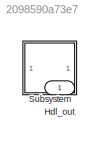
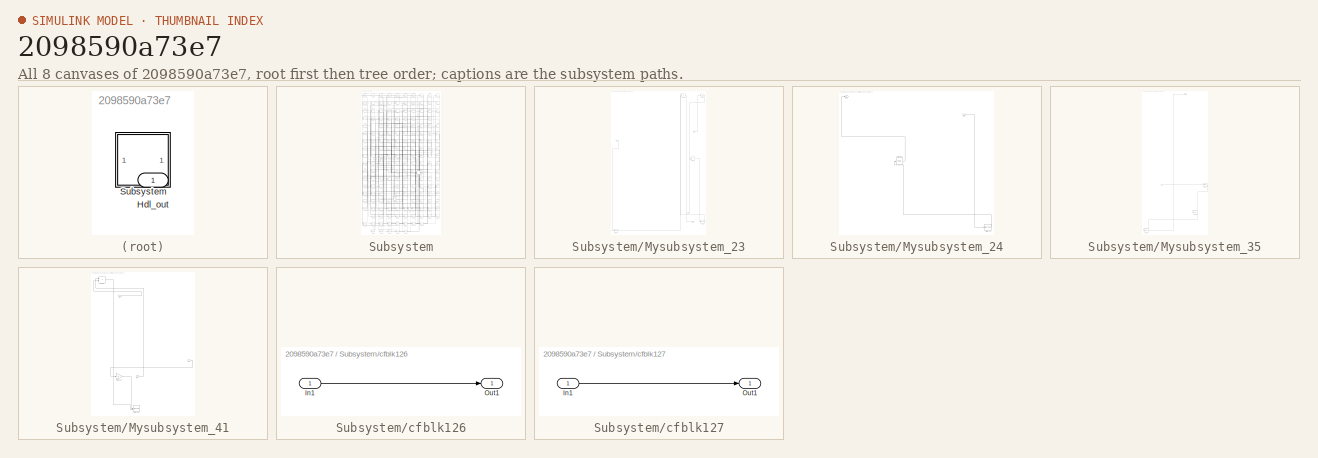
[diagram: thumbnail index - all 8 canvases of the model, root first then tree order]
MODEL slx_2098590a73e7
KIND model
CONFIG AbsTol = auto
CONFIG EnableMultiTasking = off
CONFIG FixedStep = auto
CONFIG MaxStep = auto
CONFIG MinStep = auto
CONFIG RelTol = 1e-3
CONFIG SampleTimeConstraint = Unconstrained
CONFIG SolverName = VariableStepAuto
CONFIG StartTime = 0.0
CONFIG StopTime = 10.0
BLOCK [Outport] Hdl_out
  OutDataTypeStr = uint8
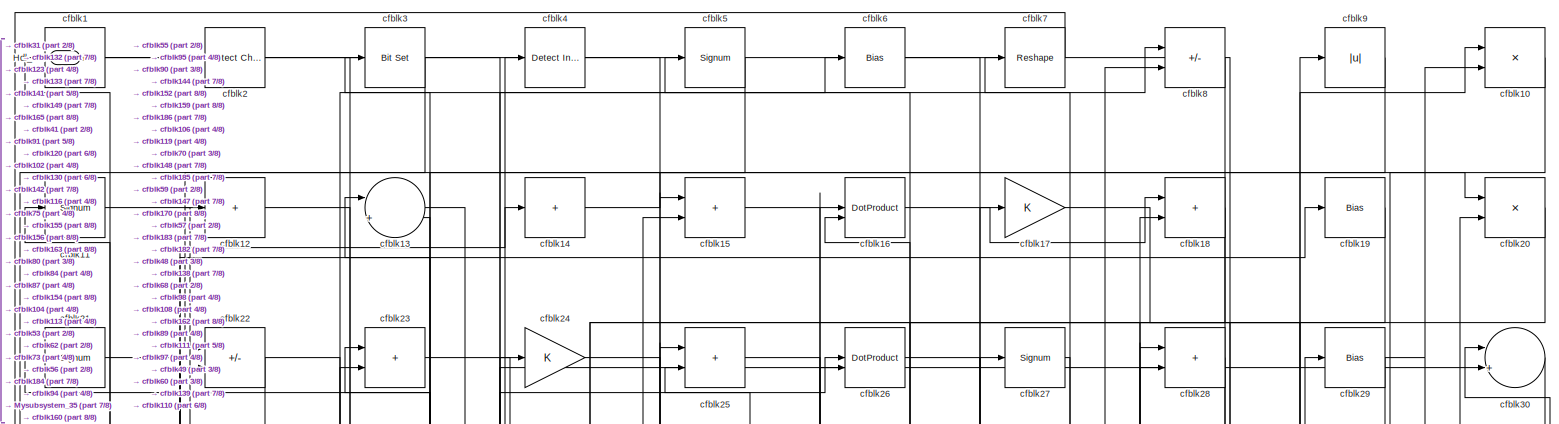
[diagram: Subsystem - part 1/8, full width, top band]
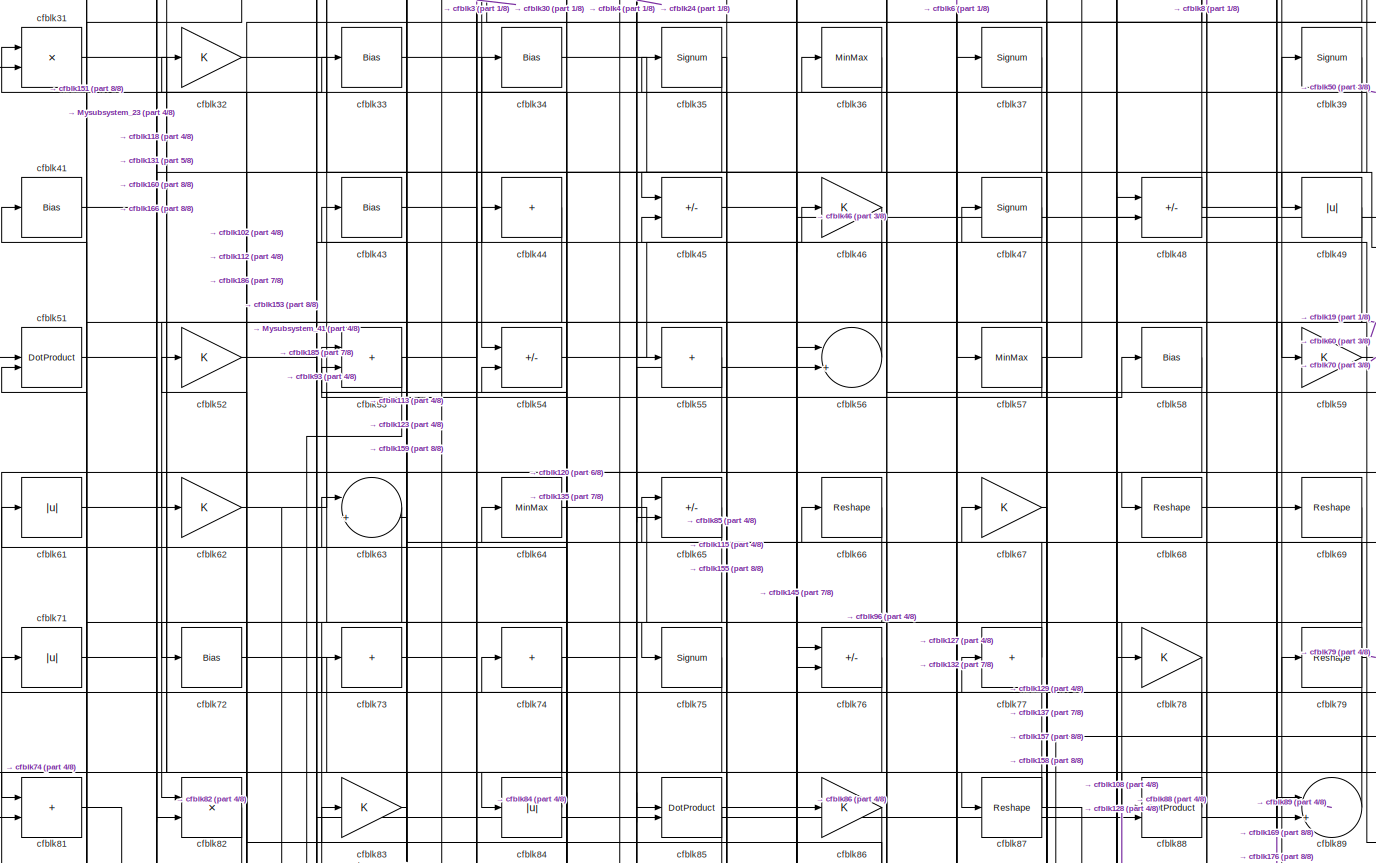
[diagram: Subsystem - part 2/8, full width, top band]
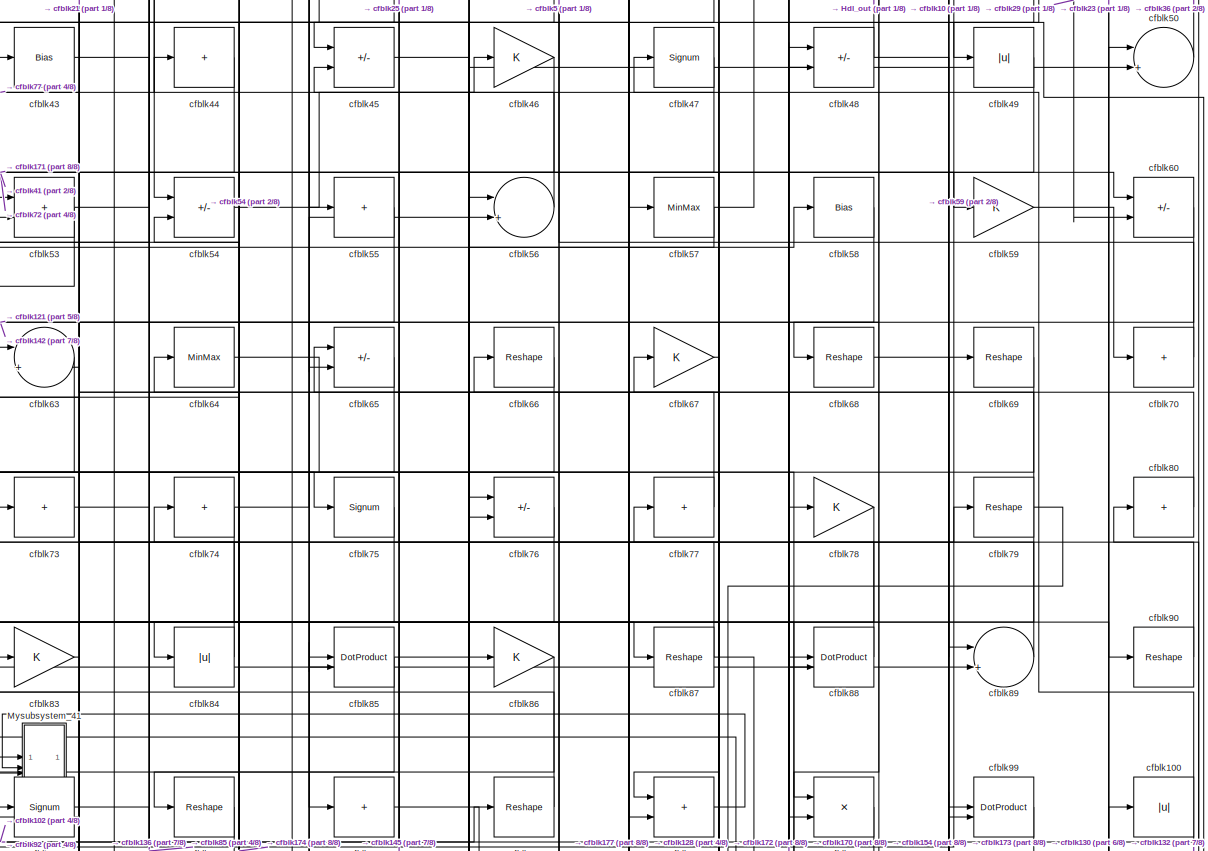
[diagram: Subsystem - part 3/8, full width, middle band]
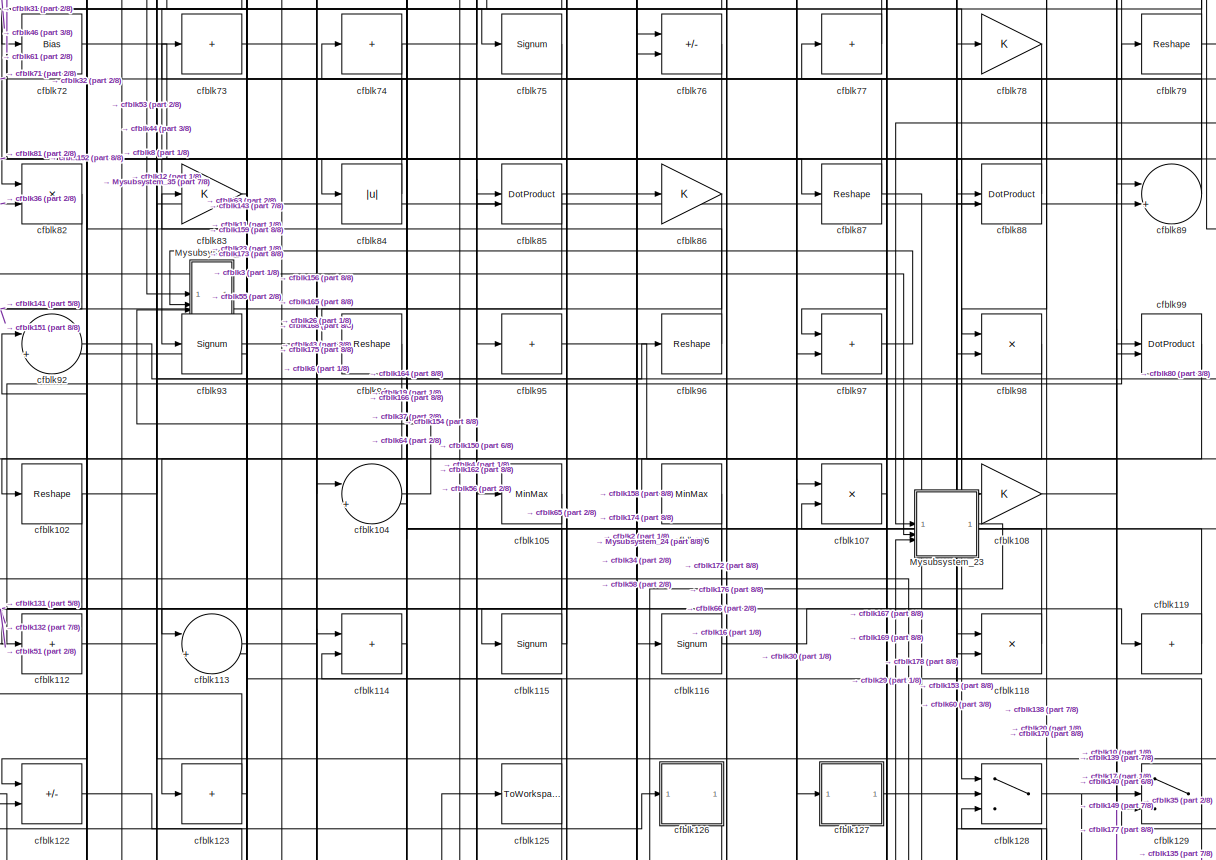
[diagram: Subsystem - part 4/8, full width, middle band]
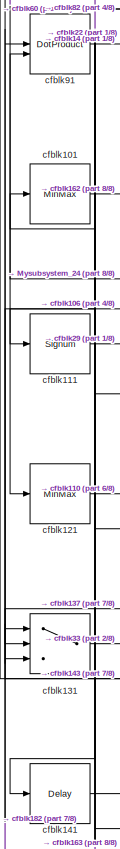
[diagram: Subsystem - part 5/8, middle left region]
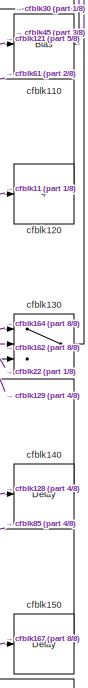
[diagram: Subsystem - part 6/8, middle right region]
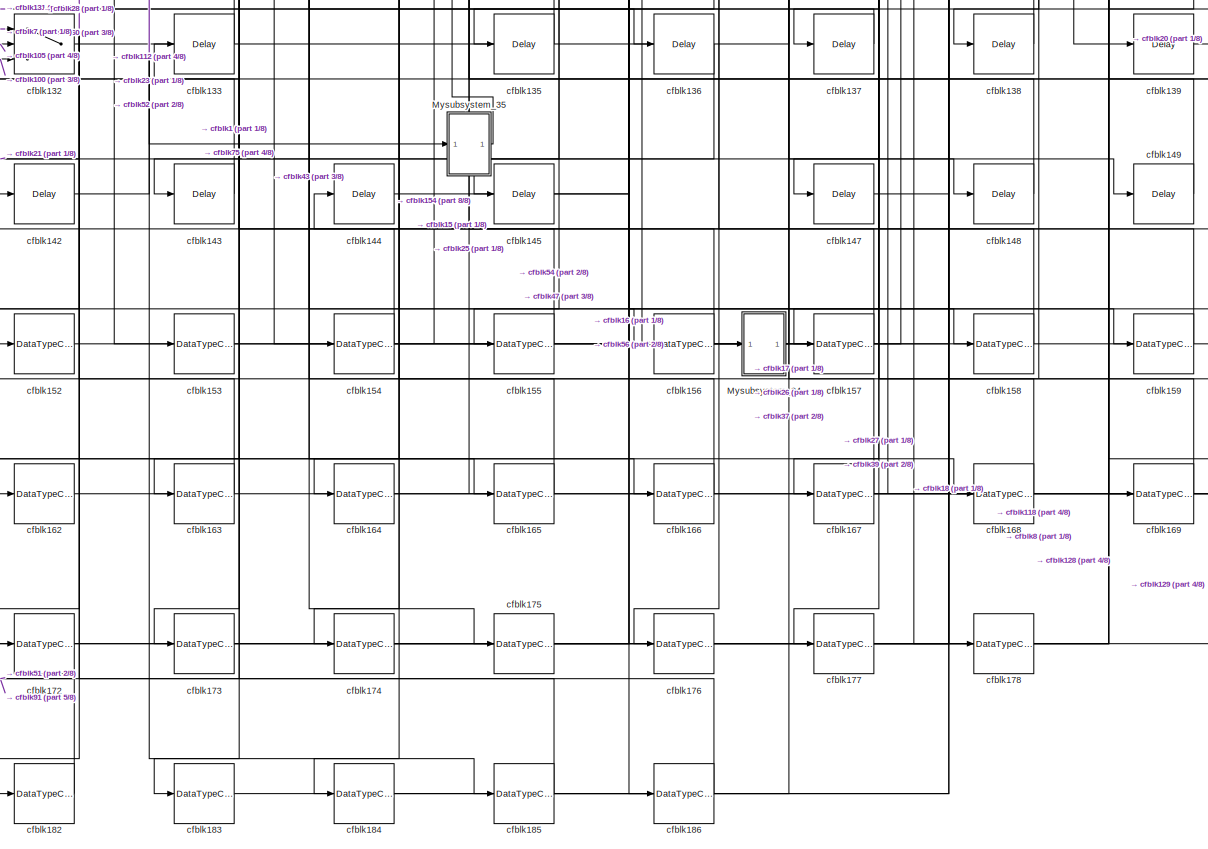
[diagram: Subsystem - part 7/8, full width, bottom band]
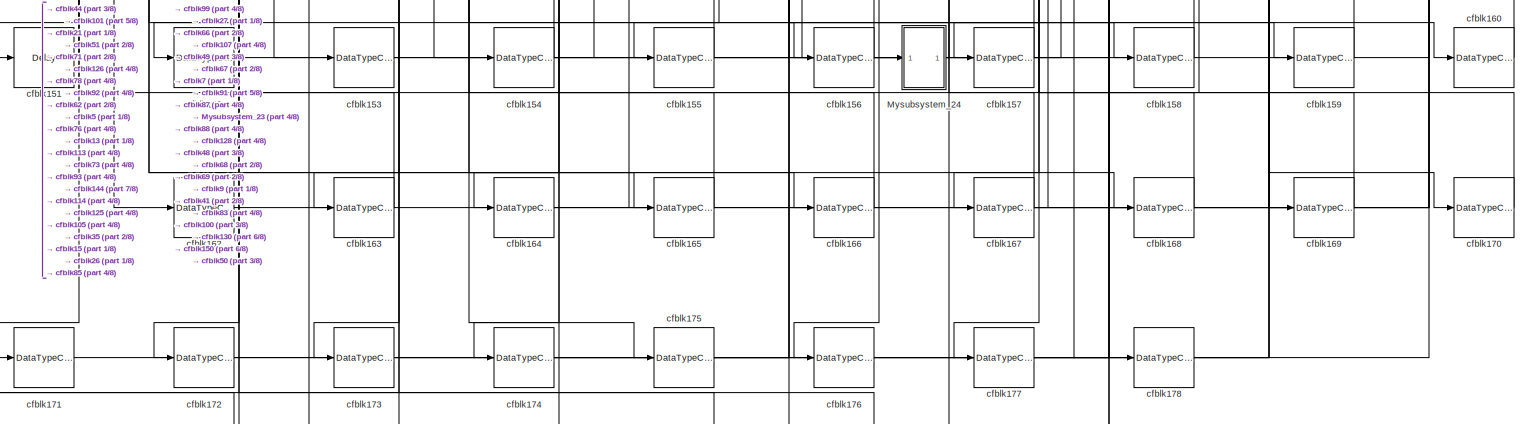
[diagram: Subsystem - part 8/8, full width, bottom band]
BLOCK [SubSystem] Subsystem
BLOCK [Outport] Subsystem/Hdl_out
  OutDataTypeStr = uint8
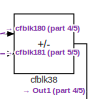
[diagram: Subsystem/Mysubsystem_23 - part 1/5, top right region]
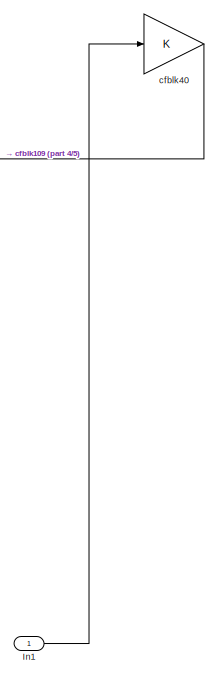
[diagram: Subsystem/Mysubsystem_23 - part 2/5, top right region]
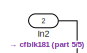
[diagram: Subsystem/Mysubsystem_23 - part 3/5, middle left region]
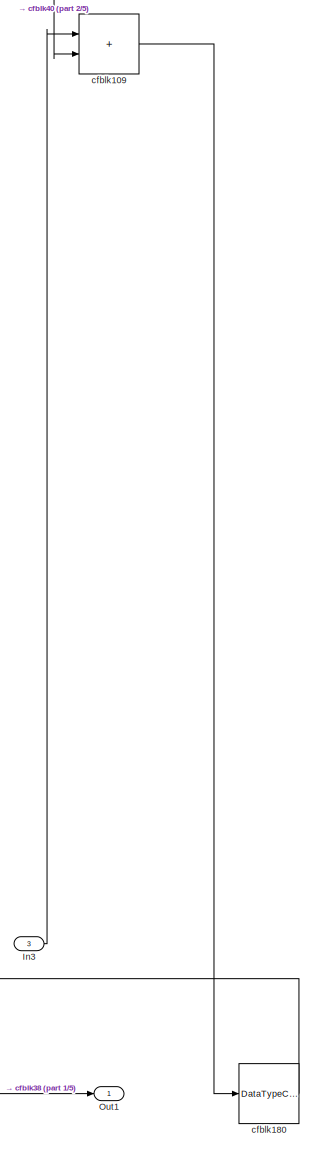
[diagram: Subsystem/Mysubsystem_23 - part 4/5, bottom right region]
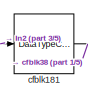
[diagram: Subsystem/Mysubsystem_23 - part 5/5, bottom left region]
BLOCK [SubSystem] Subsystem/Mysubsystem_23
  RTWFcnName = Mysubsystem_23
  RTWFcnNameOpts = User specified
  RTWFileNameOpts = Use function name
  RTWSystemCode = Reusable function
  TreatAsAtomicUnit = on
BLOCK [Inport] Subsystem/Mysubsystem_23/In1
BLOCK [Inport] Subsystem/Mysubsystem_23/In2
  Port = 2
BLOCK [Inport] Subsystem/Mysubsystem_23/In3
  Port = 3
BLOCK [Outport] Subsystem/Mysubsystem_23/Out1
BLOCK [Sum] Subsystem/Mysubsystem_23/cfblk109
  IconShape = rectangular
BLOCK [DataTypeConversion] Subsystem/Mysubsystem_23/cfblk180
  OutDataTypeStr = uint8
  RndMeth = Floor
  SaturateOnIntegerOverflow = off
BLOCK [DataTypeConversion] Subsystem/Mysubsystem_23/cfblk181
  OutDataTypeStr = uint8
  RndMeth = Floor
  SaturateOnIntegerOverflow = off
BLOCK [Sum] Subsystem/Mysubsystem_23/cfblk38
  IconShape = rectangular
  Inputs = +-
BLOCK [Gain] Subsystem/Mysubsystem_23/cfblk40
BLOCK [SubSystem] Subsystem/Mysubsystem_24
  RTWFcnName = Mysubsystem_24
  RTWFcnNameOpts = User specified
  RTWFileNameOpts = Use function name
  RTWSystemCode = Reusable function
  TreatAsAtomicUnit = on
BLOCK [Inport] Subsystem/Mysubsystem_24/In1
BLOCK [Outport] Subsystem/Mysubsystem_24/Out1
BLOCK [Delay] Subsystem/Mysubsystem_24/cfblk134
  InputPortMap = u0
  SampleTime = 1
BLOCK [DataTypeConversion] Subsystem/Mysubsystem_24/cfblk179
  OutDataTypeStr = uint8
  RndMeth = Floor
  SaturateOnIntegerOverflow = off
BLOCK [SubSystem] Subsystem/Mysubsystem_35
  RTWFcnName = Mysubsystem_35
  RTWFcnNameOpts = User specified
  RTWFileNameOpts = Use function name
  RTWSystemCode = Reusable function
  TreatAsAtomicUnit = on
BLOCK [Inport] Subsystem/Mysubsystem_35/In1
BLOCK [Outport] Subsystem/Mysubsystem_35/Out1
BLOCK [MinMax] Subsystem/Mysubsystem_35/cfblk117
BLOCK [Delay] Subsystem/Mysubsystem_35/cfblk146
  InputPortMap = u0
  SampleTime = 1
BLOCK [DataTypeConversion] Subsystem/Mysubsystem_35/cfblk161
  OutDataTypeStr = uint8
  RndMeth = Floor
  SaturateOnIntegerOverflow = off
BLOCK [SubSystem] Subsystem/Mysubsystem_41
  RTWFcnName = Mysubsystem_41
  RTWFcnNameOpts = User specified
  RTWFileNameOpts = Use function name
  RTWSystemCode = Reusable function
  TreatAsAtomicUnit = on
BLOCK [Inport] Subsystem/Mysubsystem_41/In1
BLOCK [Inport] Subsystem/Mysubsystem_41/In2
  Port = 2
BLOCK [Inport] Subsystem/Mysubsystem_41/In3
  Port = 3
BLOCK [Gain] Subsystem/Mysubsystem_41/cfblk103
BLOCK [Record] Subsystem/Mysubsystem_41/cfblk124
  CompatibilityTag = XY
  FileSettingsInternal = {"entries":[{"content":{"excelSettings":{"content":{},"type":"Streamout.ExcelSettings"}},"type":"Streamout.FileSettingStorage","uuid":""}],"packageUris":["http:\/\/schema.mathworks.com\/mf0\/streamout_blocks\/R2020a"],"version":"1.0"}
  Layout = [1 1]
  SignalsInternal = {"entries":[{"content":{},"type":"RecordBlkView.InputSignals","uuid":""}],"packageUris":["http:\/\/schema.mathworks.com\/mf0\/streamout_blocks\/R2020a"],"version":"1.0"}
  VisualizationBindings = {"xyplotplugin":{"info":[{"series":[],"subplotID":1}]}}
  st = -1
BLOCK [Product] Subsystem/Mysubsystem_41/cfblk42
  Inputs = */
  RndMeth = Zero
  SaturateOnIntegerOverflow = on
BLOCK [Reference] Subsystem/cfblk1  REF=hdlsllib/Logic and Bit
Operations/Interval Test
  SourceBlock = hdlsllib/Logic and Bit\nOperations/Interval Test
  SourceType = Interval Test
BLOCK [Product] Subsystem/cfblk10
  Inputs = */
  OutDataTypeStr = uint8
  RndMeth = Zero
  SaturateOnIntegerOverflow = on
BLOCK [Abs] Subsystem/cfblk100
  OutDataTypeStr = uint8
  SaturateOnIntegerOverflow = off
BLOCK [MinMax] Subsystem/cfblk101
  OutDataTypeStr = uint8
BLOCK [Reshape] Subsystem/cfblk102
BLOCK [Sum] Subsystem/cfblk104
  Inputs = |++
  OutDataTypeStr = uint8
BLOCK [MinMax] Subsystem/cfblk105
  OutDataTypeStr = uint8
BLOCK [MinMax] Subsystem/cfblk106
  OutDataTypeStr = uint8
BLOCK [Product] Subsystem/cfblk107
  Inputs = */
  OutDataTypeStr = uint8
  RndMeth = Zero
  SaturateOnIntegerOverflow = on
BLOCK [Gain] Subsystem/cfblk108
  OutDataTypeStr = uint8
BLOCK [Signum] Subsystem/cfblk11
BLOCK [Bias] Subsystem/cfblk110
  Bias = 0.0
  SaturateOnIntegerOverflow = off
BLOCK [Signum] Subsystem/cfblk111
BLOCK [Sum] Subsystem/cfblk112
  IconShape = rectangular
  Inputs = +
  OutDataTypeStr = uint8
BLOCK [Sum] Subsystem/cfblk113
  Inputs = |++
  OutDataTypeStr = uint8
BLOCK [Sum] Subsystem/cfblk114
  IconShape = rectangular
  OutDataTypeStr = uint8
BLOCK [Signum] Subsystem/cfblk115
BLOCK [Signum] Subsystem/cfblk116
BLOCK [Product] Subsystem/cfblk118
  Inputs = */
  OutDataTypeStr = uint8
  RndMeth = Zero
  SaturateOnIntegerOverflow = on
BLOCK [Sum] Subsystem/cfblk119
  IconShape = rectangular
  Inputs = +
  OutDataTypeStr = uint8
BLOCK [Sum] Subsystem/cfblk12
  IconShape = rectangular
  Inputs = +
  OutDataTypeStr = uint8
BLOCK [Sum] Subsystem/cfblk120
  IconShape = rectangular
  Inputs = +
  OutDataTypeStr = uint8
BLOCK [MinMax] Subsystem/cfblk121
  OutDataTypeStr = uint8
BLOCK [Sum] Subsystem/cfblk122
  IconShape = rectangular
  Inputs = +-
  OutDataTypeStr = uint8
BLOCK [Sum] Subsystem/cfblk123
  IconShape = rectangular
  Inputs = +
  OutDataTypeStr = uint8
BLOCK [ToWorkspace] Subsystem/cfblk125
  MaxDataPoints = inf
  SampleTime = -1
  SaveFormat = Timeseries
  VariableName = simout
BLOCK [SubSystem] Subsystem/cfblk126
  LibrarySourceBlock = hdlsllib/Ports &\nSubsystems/Subsystem
BLOCK [Inport] Subsystem/cfblk126/In1
BLOCK [Outport] Subsystem/cfblk126/Out1
BLOCK [SubSystem] Subsystem/cfblk127
  LibrarySourceBlock = hdlsllib/Ports &\nSubsystems/Subsystem
BLOCK [Inport] Subsystem/cfblk127/In1
BLOCK [Outport] Subsystem/cfblk127/Out1
BLOCK [Switch] Subsystem/cfblk128
  InputSameDT = off
  OutDataTypeStr = uint8
  SaturateOnIntegerOverflow = off
BLOCK [Switch] Subsystem/cfblk129
  InputSameDT = off
  OutDataTypeStr = uint8
  SaturateOnIntegerOverflow = off
BLOCK [Sum] Subsystem/cfblk13
  Inputs = |++
  OutDataTypeStr = uint8
BLOCK [Switch] Subsystem/cfblk130
  InputSameDT = off
  OutDataTypeStr = uint8
  SaturateOnIntegerOverflow = off
BLOCK [Switch] Subsystem/cfblk131
  InputSameDT = off
  OutDataTypeStr = uint8
  SaturateOnIntegerOverflow = off
BLOCK [Switch] Subsystem/cfblk132
  InputSameDT = off
  OutDataTypeStr = uint8
  SaturateOnIntegerOverflow = off
BLOCK [Delay] Subsystem/cfblk133
  InputPortMap = u0
  SampleTime = 1
BLOCK [Delay] Subsystem/cfblk135
  InputPortMap = u0
  SampleTime = 1
BLOCK [Delay] Subsystem/cfblk136
  InputPortMap = u0
  SampleTime = 1
BLOCK [Delay] Subsystem/cfblk137
  InputPortMap = u0
  SampleTime = 1
BLOCK [Delay] Subsystem/cfblk138
  InputPortMap = u0
  SampleTime = 1
BLOCK [Delay] Subsystem/cfblk139
  InputPortMap = u0
  SampleTime = 1
BLOCK [Sum] Subsystem/cfblk14
  IconShape = rectangular
  Inputs = +
  OutDataTypeStr = uint8
BLOCK [Delay] Subsystem/cfblk140
  InputPortMap = u0
  SampleTime = 1
BLOCK [Delay] Subsystem/cfblk141
  InputPortMap = u0
  SampleTime = 1
BLOCK [Delay] Subsystem/cfblk142
  InputPortMap = u0
  SampleTime = 1
BLOCK [Delay] Subsystem/cfblk143
  InputPortMap = u0
  SampleTime = 1
BLOCK [Delay] Subsystem/cfblk144
  InputPortMap = u0
  SampleTime = 1
BLOCK [Delay] Subsystem/cfblk145
  InputPortMap = u0
  SampleTime = 1
BLOCK [Delay] Subsystem/cfblk147
  InputPortMap = u0
  SampleTime = 1
BLOCK [Delay] Subsystem/cfblk148
  InputPortMap = u0
  SampleTime = 1
BLOCK [Delay] Subsystem/cfblk149
  InputPortMap = u0
  SampleTime = 1
BLOCK [Sum] Subsystem/cfblk15
  IconShape = rectangular
  OutDataTypeStr = uint8
BLOCK [Delay] Subsystem/cfblk150
  InputPortMap = u0
  SampleTime = 1
BLOCK [Delay] Subsystem/cfblk151
  InputPortMap = u0
  SampleTime = 1
BLOCK [DataTypeConversion] Subsystem/cfblk152
  OutDataTypeStr = uint8
  RndMeth = Floor
  SaturateOnIntegerOverflow = off
BLOCK [DataTypeConversion] Subsystem/cfblk153
  OutDataTypeStr = uint8
  RndMeth = Floor
  SaturateOnIntegerOverflow = off
BLOCK [DataTypeConversion] Subsystem/cfblk154
  OutDataTypeStr = uint8
  RndMeth = Floor
  SaturateOnIntegerOverflow = off
BLOCK [DataTypeConversion] Subsystem/cfblk155
  OutDataTypeStr = uint8
  RndMeth = Floor
  SaturateOnIntegerOverflow = off
BLOCK [DataTypeConversion] Subsystem/cfblk156
  OutDataTypeStr = uint8
  RndMeth = Floor
  SaturateOnIntegerOverflow = off
BLOCK [DataTypeConversion] Subsystem/cfblk157
  OutDataTypeStr = uint8
  RndMeth = Floor
  SaturateOnIntegerOverflow = off
BLOCK [DataTypeConversion] Subsystem/cfblk158
  OutDataTypeStr = uint8
  RndMeth = Floor
  SaturateOnIntegerOverflow = off
BLOCK [DataTypeConversion] Subsystem/cfblk159
  OutDataTypeStr = uint8
  RndMeth = Floor
  SaturateOnIntegerOverflow = off
BLOCK [DotProduct] Subsystem/cfblk16
  OutDataTypeStr = uint8
BLOCK [DataTypeConversion] Subsystem/cfblk160
  OutDataTypeStr = uint8
  RndMeth = Floor
  SaturateOnIntegerOverflow = off
BLOCK [DataTypeConversion] Subsystem/cfblk162
  OutDataTypeStr = uint8
  RndMeth = Floor
  SaturateOnIntegerOverflow = off
BLOCK [DataTypeConversion] Subsystem/cfblk163
  OutDataTypeStr = uint8
  RndMeth = Floor
  SaturateOnIntegerOverflow = off
BLOCK [DataTypeConversion] Subsystem/cfblk164
  OutDataTypeStr = uint8
  RndMeth = Floor
  SaturateOnIntegerOverflow = off
BLOCK [DataTypeConversion] Subsystem/cfblk165
  OutDataTypeStr = uint8
  RndMeth = Floor
  SaturateOnIntegerOverflow = off
BLOCK [DataTypeConversion] Subsystem/cfblk166
  OutDataTypeStr = uint8
  RndMeth = Floor
  SaturateOnIntegerOverflow = off
BLOCK [DataTypeConversion] Subsystem/cfblk167
  OutDataTypeStr = uint8
  RndMeth = Floor
  SaturateOnIntegerOverflow = off
BLOCK [DataTypeConversion] Subsystem/cfblk168
  OutDataTypeStr = uint8
  RndMeth = Floor
  SaturateOnIntegerOverflow = off
BLOCK [DataTypeConversion] Subsystem/cfblk169
  OutDataTypeStr = uint8
  RndMeth = Floor
  SaturateOnIntegerOverflow = off
BLOCK [Gain] Subsystem/cfblk17
  OutDataTypeStr = uint8
BLOCK [DataTypeConversion] Subsystem/cfblk170
  OutDataTypeStr = uint8
  RndMeth = Floor
  SaturateOnIntegerOverflow = off
BLOCK [DataTypeConversion] Subsystem/cfblk171
  OutDataTypeStr = uint8
  RndMeth = Floor
  SaturateOnIntegerOverflow = off
BLOCK [DataTypeConversion] Subsystem/cfblk172
  OutDataTypeStr = uint8
  RndMeth = Floor
  SaturateOnIntegerOverflow = off
BLOCK [DataTypeConversion] Subsystem/cfblk173
  OutDataTypeStr = uint8
  RndMeth = Floor
  SaturateOnIntegerOverflow = off
BLOCK [DataTypeConversion] Subsystem/cfblk174
  OutDataTypeStr = uint8
  RndMeth = Floor
  SaturateOnIntegerOverflow = off
BLOCK [DataTypeConversion] Subsystem/cfblk175
  OutDataTypeStr = uint8
  RndMeth = Floor
  SaturateOnIntegerOverflow = off
BLOCK [DataTypeConversion] Subsystem/cfblk176
  OutDataTypeStr = uint8
  RndMeth = Floor
  SaturateOnIntegerOverflow = off
BLOCK [DataTypeConversion] Subsystem/cfblk177
  OutDataTypeStr = uint8
  RndMeth = Floor
  SaturateOnIntegerOverflow = off
BLOCK [DataTypeConversion] Subsystem/cfblk178
  OutDataTypeStr = uint8
  RndMeth = Floor
  SaturateOnIntegerOverflow = off
BLOCK [Sum] Subsystem/cfblk18
  IconShape = rectangular
  OutDataTypeStr = uint8
BLOCK [DataTypeConversion] Subsystem/cfblk182
  OutDataTypeStr = uint8
  RndMeth = Floor
  SaturateOnIntegerOverflow = off
BLOCK [DataTypeConversion] Subsystem/cfblk183
  OutDataTypeStr = uint8
  RndMeth = Floor
  SaturateOnIntegerOverflow = off
BLOCK [DataTypeConversion] Subsystem/cfblk184
  OutDataTypeStr = uint8
  RndMeth = Floor
  SaturateOnIntegerOverflow = off
BLOCK [DataTypeConversion] Subsystem/cfblk185
  OutDataTypeStr = uint8
  RndMeth = Floor
  SaturateOnIntegerOverflow = off
BLOCK [DataTypeConversion] Subsystem/cfblk186
  OutDataTypeStr = uint8
  RndMeth = Floor
  SaturateOnIntegerOverflow = off
BLOCK [Bias] Subsystem/cfblk19
  Bias = 0.0
  SaturateOnIntegerOverflow = off
BLOCK [Reference] Subsystem/cfblk2  REF=simulink/Logic and Bit
Operations/Detect
Change
  LibrarySourceBlock = hdlsllib/Logic and Bit\nOperations/Detect\nChange
  SourceBlock = simulink/Logic and Bit\nOperations/Detect\nChange
  SourceType = Detect Change
BLOCK [Product] Subsystem/cfblk20
  Inputs = */
  OutDataTypeStr = uint8
  RndMeth = Zero
  SaturateOnIntegerOverflow = on
BLOCK [Signum] Subsystem/cfblk21
BLOCK [Sum] Subsystem/cfblk22
  IconShape = rectangular
  Inputs = +-
  OutDataTypeStr = uint8
BLOCK [Sum] Subsystem/cfblk23
  IconShape = rectangular
  OutDataTypeStr = uint8
BLOCK [Gain] Subsystem/cfblk24
  OutDataTypeStr = uint8
BLOCK [Sum] Subsystem/cfblk25
  IconShape = rectangular
  OutDataTypeStr = uint8
BLOCK [DotProduct] Subsystem/cfblk26
  OutDataTypeStr = uint8
BLOCK [Signum] Subsystem/cfblk27
BLOCK [Sum] Subsystem/cfblk28
  IconShape = rectangular
  OutDataTypeStr = uint8
BLOCK [Bias] Subsystem/cfblk29
  Bias = 0.0
  SaturateOnIntegerOverflow = off
BLOCK [Reference] Subsystem/cfblk3  REF=simulink/Logic and Bit
Operations/Bit Set
  LibrarySourceBlock = hdlsllib/Logic and Bit\nOperations/Bit Set
  SourceBlock = simulink/Logic and Bit\nOperations/Bit Set
  SourceType = Bit Set
BLOCK [Sum] Subsystem/cfblk30
  Inputs = |++
  OutDataTypeStr = uint8
BLOCK [Product] Subsystem/cfblk31
  Inputs = */
  OutDataTypeStr = uint8
  RndMeth = Zero
  SaturateOnIntegerOverflow = on
BLOCK [Gain] Subsystem/cfblk32
  OutDataTypeStr = uint8
BLOCK [Bias] Subsystem/cfblk33
  Bias = 0.0
  SaturateOnIntegerOverflow = off
BLOCK [Bias] Subsystem/cfblk34
  Bias = 0.0
  SaturateOnIntegerOverflow = off
BLOCK [Signum] Subsystem/cfblk35
BLOCK [MinMax] Subsystem/cfblk36
  OutDataTypeStr = uint8
BLOCK [Signum] Subsystem/cfblk37
BLOCK [Signum] Subsystem/cfblk39
BLOCK [Reference] Subsystem/cfblk4  REF=simulink/Logic and Bit
Operations/Detect
Increase
  LibrarySourceBlock = hdlsllib/Logic and Bit\nOperations/Detect\nIncrease
  SourceBlock = simulink/Logic and Bit\nOperations/Detect\nIncrease
  SourceType = Detect Increase
BLOCK [Bias] Subsystem/cfblk41
  Bias = 0.0
  SaturateOnIntegerOverflow = off
BLOCK [Bias] Subsystem/cfblk43
  Bias = 0.0
  SaturateOnIntegerOverflow = off
BLOCK [Sum] Subsystem/cfblk44
  IconShape = rectangular
  Inputs = +
  OutDataTypeStr = uint8
BLOCK [Sum] Subsystem/cfblk45
  IconShape = rectangular
  Inputs = +-
  OutDataTypeStr = uint8
BLOCK [Gain] Subsystem/cfblk46
  OutDataTypeStr = uint8
BLOCK [Signum] Subsystem/cfblk47
BLOCK [Sum] Subsystem/cfblk48
  IconShape = rectangular
  Inputs = +-
  OutDataTypeStr = uint8
BLOCK [Abs] Subsystem/cfblk49
  OutDataTypeStr = uint8
  SaturateOnIntegerOverflow = off
BLOCK [Signum] Subsystem/cfblk5
BLOCK [Sum] Subsystem/cfblk50
  Inputs = |++
  OutDataTypeStr = uint8
BLOCK [DotProduct] Subsystem/cfblk51
  OutDataTypeStr = uint8
BLOCK [Gain] Subsystem/cfblk52
  OutDataTypeStr = uint8
BLOCK [Sum] Subsystem/cfblk53
  IconShape = rectangular
  OutDataTypeStr = uint8
BLOCK [Sum] Subsystem/cfblk54
  IconShape = rectangular
  Inputs = +-
  OutDataTypeStr = uint8
BLOCK [Sum] Subsystem/cfblk55
  IconShape = rectangular
  Inputs = +
  OutDataTypeStr = uint8
BLOCK [Sum] Subsystem/cfblk56
  Inputs = |++
  OutDataTypeStr = uint8
BLOCK [MinMax] Subsystem/cfblk57
  OutDataTypeStr = uint8
BLOCK [Bias] Subsystem/cfblk58
  Bias = 0.0
  SaturateOnIntegerOverflow = off
BLOCK [Gain] Subsystem/cfblk59
  OutDataTypeStr = uint8
BLOCK [Bias] Subsystem/cfblk6
  Bias = 0.0
  SaturateOnIntegerOverflow = off
BLOCK [Sum] Subsystem/cfblk60
  IconShape = rectangular
  Inputs = +-
  OutDataTypeStr = uint8
BLOCK [Abs] Subsystem/cfblk61
  OutDataTypeStr = uint8
  SaturateOnIntegerOverflow = off
BLOCK [Gain] Subsystem/cfblk62
  OutDataTypeStr = uint8
BLOCK [Sum] Subsystem/cfblk63
  Inputs = |++
  OutDataTypeStr = uint8
BLOCK [MinMax] Subsystem/cfblk64
  OutDataTypeStr = uint8
BLOCK [Sum] Subsystem/cfblk65
  IconShape = rectangular
  Inputs = +-
  OutDataTypeStr = uint8
BLOCK [Reshape] Subsystem/cfblk66
BLOCK [Gain] Subsystem/cfblk67
  OutDataTypeStr = uint8
BLOCK [Reshape] Subsystem/cfblk68
BLOCK [Reshape] Subsystem/cfblk69
BLOCK [Reshape] Subsystem/cfblk7
BLOCK [Sum] Subsystem/cfblk70
  IconShape = rectangular
  Inputs = +
  OutDataTypeStr = uint8
BLOCK [Abs] Subsystem/cfblk71
  OutDataTypeStr = uint8
  SaturateOnIntegerOverflow = off
BLOCK [Bias] Subsystem/cfblk72
  Bias = 0.0
  SaturateOnIntegerOverflow = off
BLOCK [Sum] Subsystem/cfblk73
  IconShape = rectangular
  Inputs = +
  OutDataTypeStr = uint8
BLOCK [Sum] Subsystem/cfblk74
  IconShape = rectangular
  Inputs = +
  OutDataTypeStr = uint8
BLOCK [Signum] Subsystem/cfblk75
BLOCK [Sum] Subsystem/cfblk76
  IconShape = rectangular
  Inputs = +-
  OutDataTypeStr = uint8
BLOCK [Sum] Subsystem/cfblk77
  IconShape = rectangular
  Inputs = +
  OutDataTypeStr = uint8
BLOCK [Gain] Subsystem/cfblk78
  OutDataTypeStr = uint8
BLOCK [Reshape] Subsystem/cfblk79
BLOCK [Sum] Subsystem/cfblk8
  IconShape = rectangular
  Inputs = +-
  OutDataTypeStr = uint8
BLOCK [Sum] Subsystem/cfblk80
  IconShape = rectangular
  Inputs = +
  OutDataTypeStr = uint8
BLOCK [Sum] Subsystem/cfblk81
  IconShape = rectangular
  OutDataTypeStr = uint8
BLOCK [Product] Subsystem/cfblk82
  Inputs = */
  OutDataTypeStr = uint8
  RndMeth = Zero
  SaturateOnIntegerOverflow = on
BLOCK [Gain] Subsystem/cfblk83
  OutDataTypeStr = uint8
BLOCK [Abs] Subsystem/cfblk84
  OutDataTypeStr = uint8
  SaturateOnIntegerOverflow = off
BLOCK [DotProduct] Subsystem/cfblk85
  OutDataTypeStr = uint8
BLOCK [Gain] Subsystem/cfblk86
  OutDataTypeStr = uint8
BLOCK [Reshape] Subsystem/cfblk87
BLOCK [DotProduct] Subsystem/cfblk88
  OutDataTypeStr = uint8
BLOCK [Sum] Subsystem/cfblk89
  Inputs = |++
  OutDataTypeStr = uint8
BLOCK [Abs] Subsystem/cfblk9
  OutDataTypeStr = uint8
  SaturateOnIntegerOverflow = off
BLOCK [Reshape] Subsystem/cfblk90
BLOCK [DotProduct] Subsystem/cfblk91
  OutDataTypeStr = uint8
BLOCK [Sum] Subsystem/cfblk92
  Inputs = |++
  OutDataTypeStr = uint8
BLOCK [Signum] Subsystem/cfblk93
BLOCK [Reshape] Subsystem/cfblk94
BLOCK [Sum] Subsystem/cfblk95
  IconShape = rectangular
  Inputs = +
  OutDataTypeStr = uint8
BLOCK [Reshape] Subsystem/cfblk96
BLOCK [Sum] Subsystem/cfblk97
  IconShape = rectangular
  OutDataTypeStr = uint8
BLOCK [Product] Subsystem/cfblk98
  Inputs = */
  OutDataTypeStr = uint8
  RndMeth = Zero
  SaturateOnIntegerOverflow = on
BLOCK [DotProduct] Subsystem/cfblk99
  OutDataTypeStr = uint8
LINE Subsystem/Mysubsystem_23/In1:1 -> Subsystem/Mysubsystem_23/cfblk40:1
LINE Subsystem/Mysubsystem_23/In2:1 -> Subsystem/Mysubsystem_23/cfblk181:1
LINE Subsystem/Mysubsystem_23/In3:1 -> Subsystem/Mysubsystem_23/cfblk109:1
LINE Subsystem/Mysubsystem_23/cfblk109:1 -> Subsystem/Mysubsystem_23/cfblk180:1
LINE Subsystem/Mysubsystem_23/cfblk180:1 -> Subsystem/Mysubsystem_23/cfblk38:1
LINE Subsystem/Mysubsystem_23/cfblk181:1 -> Subsystem/Mysubsystem_23/cfblk38:2
LINE Subsystem/Mysubsystem_23/cfblk38:1 -> Subsystem/Mysubsystem_23/Out1:1
LINE Subsystem/Mysubsystem_23/cfblk40:1 -> Subsystem/Mysubsystem_23/cfblk109:2
LINE Subsystem/Mysubsystem_23:1 -> Subsystem/Mysubsystem_24:1
LINE Subsystem/Mysubsystem_24/In1:1 -> Subsystem/Mysubsystem_24/cfblk179:1
LINE Subsystem/Mysubsystem_24/cfblk134:1 -> Subsystem/Mysubsystem_24/Out1:1
LINE Subsystem/Mysubsystem_24/cfblk179:1 -> Subsystem/Mysubsystem_24/cfblk134:1
LINE Subsystem/Mysubsystem_24:1 -> Subsystem/cfblk91:2
LINE Subsystem/Mysubsystem_35/In1:1 -> Subsystem/Mysubsystem_35/cfblk117:1
LINE Subsystem/Mysubsystem_35/cfblk117:1 -> Subsystem/Mysubsystem_35/cfblk146:1
LINE Subsystem/Mysubsystem_35/cfblk146:1 -> Subsystem/Mysubsystem_35/cfblk161:1
LINE Subsystem/Mysubsystem_35/cfblk161:1 -> Subsystem/Mysubsystem_35/Out1:1
LINE Subsystem/Mysubsystem_35:1 -> Subsystem/cfblk15:2
LINE Subsystem/Mysubsystem_41/In1:1 -> Subsystem/Mysubsystem_41/cfblk42:2
LINE Subsystem/Mysubsystem_41/In2:1 -> Subsystem/Mysubsystem_41/cfblk103:1
LINE Subsystem/Mysubsystem_41/In3:1 -> Subsystem/Mysubsystem_41/cfblk42:1
LINE Subsystem/Mysubsystem_41/cfblk103:1 -> Subsystem/Mysubsystem_41/cfblk124:1
LINE Subsystem/Mysubsystem_41/cfblk42:1 -> Subsystem/Mysubsystem_41/cfblk124:2
NET Subsystem/cfblk100:1 -> Subsystem/cfblk132:3, Subsystem/cfblk47:1
LINE Subsystem/cfblk101:1 -> Subsystem/cfblk162:1
NET Subsystem/cfblk102:1 -> Subsystem/cfblk122:2, Subsystem/cfblk44:1, Subsystem/cfblk8:1, Subsystem/cfblk96:1
LINE Subsystem/cfblk104:1 -> Subsystem/Mysubsystem_41:3
LINE Subsystem/cfblk105:1 -> Subsystem/cfblk132:2
LINE Subsystem/cfblk106:1 -> Subsystem/cfblk131:3
LINE Subsystem/cfblk107:1 -> Subsystem/cfblk167:1
LINE Subsystem/cfblk108:1 -> Subsystem/cfblk10:1
LINE Subsystem/cfblk10:1 -> Subsystem/cfblk49:1
LINE Subsystem/cfblk110:1 -> Subsystem/cfblk30:1
LINE Subsystem/cfblk111:1 -> Subsystem/cfblk29:1
NET Subsystem/cfblk112:1 -> Subsystem/Mysubsystem_35:1, Subsystem/cfblk89:2
NET Subsystem/cfblk113:1 -> Subsystem/cfblk156:1, Subsystem/cfblk6:1
LINE Subsystem/cfblk114:1 -> Subsystem/cfblk164:1
NET Subsystem/cfblk115:1 -> Subsystem/cfblk31:1, Subsystem/cfblk53:1, Subsystem/cfblk65:1
NET Subsystem/cfblk116:1 -> Subsystem/cfblk119:1, Subsystem/cfblk73:1
LINE Subsystem/cfblk118:1 -> Subsystem/cfblk74:1
LINE Subsystem/cfblk119:1 -> Subsystem/cfblk16:2
LINE Subsystem/cfblk11:1 -> Subsystem/cfblk120:1
LINE Subsystem/cfblk120:1 -> Subsystem/cfblk61:1
LINE Subsystem/cfblk121:1 -> Subsystem/cfblk110:1
LINE Subsystem/cfblk122:1 -> Subsystem/cfblk126:1
NET Subsystem/cfblk123:1 -> Subsystem/cfblk11:1, Subsystem/cfblk63:1
LINE Subsystem/cfblk126/In1:1 -> Subsystem/cfblk126/Out1:1
LINE Subsystem/cfblk126:1 -> Subsystem/cfblk172:1
LINE Subsystem/cfblk127/In1:1 -> Subsystem/cfblk127/Out1:1
LINE Subsystem/cfblk127:1 -> Subsystem/cfblk79:1
NET Subsystem/cfblk128:1 -> Subsystem/cfblk139:1, Subsystem/cfblk140:1
NET Subsystem/cfblk129:1 -> Subsystem/cfblk135:1, Subsystem/cfblk34:1, Subsystem/cfblk63:2, Subsystem/cfblk77:1, Subsystem/cfblk92:2
LINE Subsystem/cfblk12:1 -> Subsystem/cfblk75:1
LINE Subsystem/cfblk130:1 -> Subsystem/cfblk45:1
LINE Subsystem/cfblk131:1 -> Subsystem/cfblk33:1
LINE Subsystem/cfblk132:1 -> Subsystem/cfblk37:1
LINE Subsystem/cfblk133:1 -> Subsystem/cfblk1:1
LINE Subsystem/cfblk135:1 -> Subsystem/cfblk54:2
LINE Subsystem/cfblk136:1 -> Subsystem/cfblk183:1
LINE Subsystem/cfblk137:1 -> Subsystem/cfblk131:2
LINE Subsystem/cfblk138:1 -> Subsystem/cfblk118:1
LINE Subsystem/cfblk139:1 -> Subsystem/cfblk20:2
LINE Subsystem/cfblk13:1 -> Subsystem/cfblk154:1
LINE Subsystem/cfblk140:1 -> Subsystem/cfblk129:3
LINE Subsystem/cfblk141:1 -> Subsystem/cfblk22:2
LINE Subsystem/cfblk142:1 -> Subsystem/cfblk23:2
LINE Subsystem/cfblk143:1 -> Subsystem/cfblk131:1
LINE Subsystem/cfblk144:1 -> Subsystem/cfblk16:1
LINE Subsystem/cfblk145:1 -> Subsystem/cfblk56:1
LINE Subsystem/cfblk147:1 -> Subsystem/cfblk18:2
LINE Subsystem/cfblk148:1 -> Subsystem/cfblk25:1
LINE Subsystem/cfblk149:1 -> Subsystem/cfblk129:2
LINE Subsystem/cfblk14:1 -> Subsystem/cfblk20:1
LINE Subsystem/cfblk150:1 -> Subsystem/cfblk85:1
LINE Subsystem/cfblk151:1 -> Subsystem/cfblk51:2
NET Subsystem/cfblk152:1 -> Subsystem/cfblk26:2, Subsystem/cfblk27:1
LINE Subsystem/cfblk153:1 -> Subsystem/cfblk78:1
NET Subsystem/cfblk154:1 -> Subsystem/cfblk100:1, Subsystem/cfblk125:1, Subsystem/cfblk144:1
LINE Subsystem/cfblk155:1 -> Subsystem/cfblk13:1
LINE Subsystem/cfblk156:1 -> Subsystem/cfblk13:2
LINE Subsystem/cfblk157:1 -> Subsystem/cfblk66:1
LINE Subsystem/cfblk158:1 -> Subsystem/cfblk67:1
NET Subsystem/cfblk159:1 -> Subsystem/cfblk41:1, Subsystem/cfblk83:1
LINE Subsystem/cfblk15:1 -> Subsystem/cfblk159:1
LINE Subsystem/cfblk160:1 -> Subsystem/cfblk15:1
NET Subsystem/cfblk162:1 -> Subsystem/cfblk105:1, Subsystem/cfblk130:2, Subsystem/cfblk9:1
LINE Subsystem/cfblk163:1 -> Subsystem/cfblk101:1
NET Subsystem/cfblk164:1 -> Subsystem/Mysubsystem_23:3, Subsystem/cfblk130:1, Subsystem/cfblk88:1, Subsystem/cfblk88:2
LINE Subsystem/cfblk165:1 -> Subsystem/cfblk114:1
LINE Subsystem/cfblk166:1 -> Subsystem/cfblk114:2
NET Subsystem/cfblk167:1 -> Subsystem/cfblk150:1, Subsystem/cfblk92:1
LINE Subsystem/cfblk168:1 -> Subsystem/cfblk107:1
LINE Subsystem/cfblk169:1 -> Subsystem/cfblk107:2
LINE Subsystem/cfblk16:1 -> Subsystem/cfblk18:1
NET Subsystem/cfblk170:1 -> Subsystem/cfblk128:3, Subsystem/cfblk7:1
LINE Subsystem/cfblk171:1 -> Subsystem/cfblk48:1
LINE Subsystem/cfblk172:1 -> Subsystem/cfblk48:2
LINE Subsystem/cfblk173:1 -> Subsystem/cfblk50:1
LINE Subsystem/cfblk174:1 -> Subsystem/cfblk76:1
LINE Subsystem/cfblk175:1 -> Subsystem/cfblk76:2
LINE Subsystem/cfblk176:1 -> Subsystem/cfblk69:1
LINE Subsystem/cfblk177:1 -> Subsystem/cfblk99:1
LINE Subsystem/cfblk178:1 -> Subsystem/cfblk99:2
LINE Subsystem/cfblk17:1 -> Subsystem/cfblk89:1
LINE Subsystem/cfblk182:1 -> Subsystem/cfblk91:1
LINE Subsystem/cfblk183:1 -> Subsystem/cfblk28:1
LINE Subsystem/cfblk184:1 -> Subsystem/cfblk28:2
NET Subsystem/cfblk185:1 -> Subsystem/cfblk133:1, Subsystem/cfblk17:1, Subsystem/cfblk51:1
LINE Subsystem/cfblk186:1 -> Subsystem/cfblk52:1
LINE Subsystem/cfblk18:1 -> Subsystem/cfblk184:1
LINE Subsystem/cfblk19:1 -> Subsystem/cfblk94:1
LINE Subsystem/cfblk1:1 -> Subsystem/cfblk2:1
NET Subsystem/cfblk20:1 -> Subsystem/cfblk106:1, Subsystem/cfblk98:1, Subsystem/cfblk98:2
NET Subsystem/cfblk21:1 -> Subsystem/cfblk149:1, Subsystem/cfblk165:1
NET Subsystem/cfblk22:1 -> Subsystem/cfblk111:1, Subsystem/cfblk130:3
LINE Subsystem/cfblk23:1 -> Subsystem/cfblk90:1
LINE Subsystem/cfblk24:1 -> Subsystem/cfblk55:1
LINE Subsystem/cfblk25:1 -> Subsystem/cfblk186:1
LINE Subsystem/cfblk26:1 -> Subsystem/cfblk148:1
LINE Subsystem/cfblk27:1 -> Subsystem/cfblk147:1
LINE Subsystem/cfblk28:1 -> Subsystem/cfblk182:1
NET Subsystem/cfblk29:1 -> Subsystem/cfblk10:2, Subsystem/cfblk60:2, Subsystem/cfblk97:1
LINE Subsystem/cfblk2:1 -> Subsystem/cfblk116:1
LINE Subsystem/cfblk30:1 -> Subsystem/cfblk97:2
LINE Subsystem/cfblk31:1 -> Subsystem/cfblk128:1
LINE Subsystem/cfblk32:1 -> Subsystem/cfblk57:1
LINE Subsystem/cfblk33:1 -> Subsystem/cfblk54:1
LINE Subsystem/cfblk34:1 -> Subsystem/cfblk86:1
NET Subsystem/cfblk35:1 -> Subsystem/cfblk155:1, Subsystem/cfblk62:1
LINE Subsystem/cfblk36:1 -> Subsystem/cfblk82:2
LINE Subsystem/cfblk37:1 -> Subsystem/cfblk84:1
LINE Subsystem/cfblk39:1 -> Subsystem/cfblk137:1
NET Subsystem/cfblk3:1 -> Subsystem/cfblk104:1, Subsystem/cfblk31:2
NET Subsystem/cfblk41:1 -> Subsystem/cfblk19:1, Subsystem/cfblk60:1
NET Subsystem/cfblk43:1 -> Subsystem/cfblk136:1, Subsystem/cfblk85:2
LINE Subsystem/cfblk44:1 -> Subsystem/cfblk171:1
LINE Subsystem/cfblk45:1 -> Subsystem/cfblk50:2
LINE Subsystem/cfblk46:1 -> Subsystem/cfblk72:1
NET Subsystem/cfblk47:1 -> Subsystem/cfblk145:1, Subsystem/cfblk45:2
NET Subsystem/cfblk48:1 -> Subsystem/Hdl_out:1, Subsystem/cfblk170:1
NET Subsystem/cfblk49:1 -> Subsystem/cfblk174:1, Subsystem/cfblk177:1
LINE Subsystem/cfblk4:1 -> Subsystem/cfblk95:1
LINE Subsystem/cfblk50:1 -> Subsystem/cfblk36:1
NET Subsystem/cfblk51:1 -> Subsystem/cfblk118:2, Subsystem/cfblk166:1
LINE Subsystem/cfblk52:1 -> Subsystem/cfblk185:1
NET Subsystem/cfblk53:1 -> Subsystem/Mysubsystem_41:1, Subsystem/cfblk30:2, Subsystem/cfblk39:1
LINE Subsystem/cfblk54:1 -> Subsystem/cfblk46:1
NET Subsystem/cfblk55:1 -> Subsystem/cfblk113:1, Subsystem/cfblk65:2
LINE Subsystem/cfblk56:1 -> Subsystem/cfblk4:1
NET Subsystem/cfblk57:1 -> Subsystem/cfblk53:2, Subsystem/cfblk8:2
LINE Subsystem/cfblk58:1 -> Subsystem/cfblk102:1
LINE Subsystem/cfblk59:1 -> Subsystem/cfblk70:1
LINE Subsystem/cfblk5:1 -> Subsystem/cfblk163:1
NET Subsystem/cfblk60:1 -> Subsystem/cfblk121:1, Subsystem/cfblk128:2, Subsystem/cfblk142:1
LINE Subsystem/cfblk61:1 -> Subsystem/cfblk127:1
NET Subsystem/cfblk62:1 -> Subsystem/cfblk153:1, Subsystem/cfblk24:1
LINE Subsystem/cfblk63:1 -> Subsystem/cfblk93:1
LINE Subsystem/cfblk64:1 -> Subsystem/cfblk108:1
LINE Subsystem/cfblk65:1 -> Subsystem/cfblk112:1
LINE Subsystem/cfblk66:1 -> Subsystem/cfblk82:1
LINE Subsystem/cfblk67:1 -> Subsystem/cfblk157:1
LINE Subsystem/cfblk68:1 -> Subsystem/cfblk169:1
LINE Subsystem/cfblk69:1 -> Subsystem/cfblk81:1
LINE Subsystem/cfblk6:1 -> Subsystem/cfblk59:1
LINE Subsystem/cfblk70:1 -> Subsystem/cfblk5:1
LINE Subsystem/cfblk71:1 -> Subsystem/cfblk160:1
LINE Subsystem/cfblk72:1 -> Subsystem/cfblk87:1
NET Subsystem/cfblk73:1 -> Subsystem/cfblk168:1, Subsystem/cfblk26:1
NET Subsystem/cfblk74:1 -> Subsystem/cfblk56:2, Subsystem/cfblk81:2
LINE Subsystem/cfblk75:1 -> Subsystem/cfblk143:1
LINE Subsystem/cfblk76:1 -> Subsystem/cfblk173:1
LINE Subsystem/cfblk77:1 -> Subsystem/cfblk43:1
LINE Subsystem/cfblk78:1 -> Subsystem/cfblk152:1
NET Subsystem/cfblk79:1 -> Subsystem/Mysubsystem_23:1, Subsystem/cfblk115:1, Subsystem/cfblk35:1
LINE Subsystem/cfblk7:1 -> Subsystem/cfblk132:1
LINE Subsystem/cfblk80:1 -> Subsystem/cfblk21:1
LINE Subsystem/cfblk81:1 -> Subsystem/Mysubsystem_23:2
LINE Subsystem/cfblk82:1 -> Subsystem/cfblk141:1
LINE Subsystem/cfblk83:1 -> Subsystem/cfblk113:2
LINE Subsystem/cfblk84:1 -> Subsystem/cfblk3:1
NET Subsystem/cfblk85:1 -> Subsystem/cfblk151:1, Subsystem/cfblk158:1, Subsystem/cfblk58:1
LINE Subsystem/cfblk86:1 -> Subsystem/cfblk104:2
NET Subsystem/cfblk87:1 -> Subsystem/cfblk178:1, Subsystem/cfblk23:1
LINE Subsystem/cfblk88:1 -> Subsystem/cfblk71:1
LINE Subsystem/cfblk89:1 -> Subsystem/cfblk64:1
NET Subsystem/cfblk8:1 -> Subsystem/cfblk138:1, Subsystem/cfblk68:1
LINE Subsystem/cfblk90:1 -> Subsystem/cfblk25:2
LINE Subsystem/cfblk91:1 -> Subsystem/cfblk14:1
LINE Subsystem/cfblk92:1 -> Subsystem/cfblk80:1
LINE Subsystem/cfblk93:1 -> Subsystem/cfblk175:1
LINE Subsystem/cfblk94:1 -> Subsystem/cfblk123:1
LINE Subsystem/cfblk95:1 -> Subsystem/cfblk129:1
LINE Subsystem/cfblk96:1 -> Subsystem/cfblk32:1
LINE Subsystem/cfblk97:1 -> Subsystem/Mysubsystem_41:2
LINE Subsystem/cfblk98:1 -> Subsystem/cfblk122:1
LINE Subsystem/cfblk99:1 -> Subsystem/cfblk176:1
NET Subsystem/cfblk9:1 -> Subsystem/cfblk12:1, Subsystem/cfblk22:1
note: NET lines group one-source signal fan-out (src -> all destinations, sorted); 1:1 wires keep LINE
